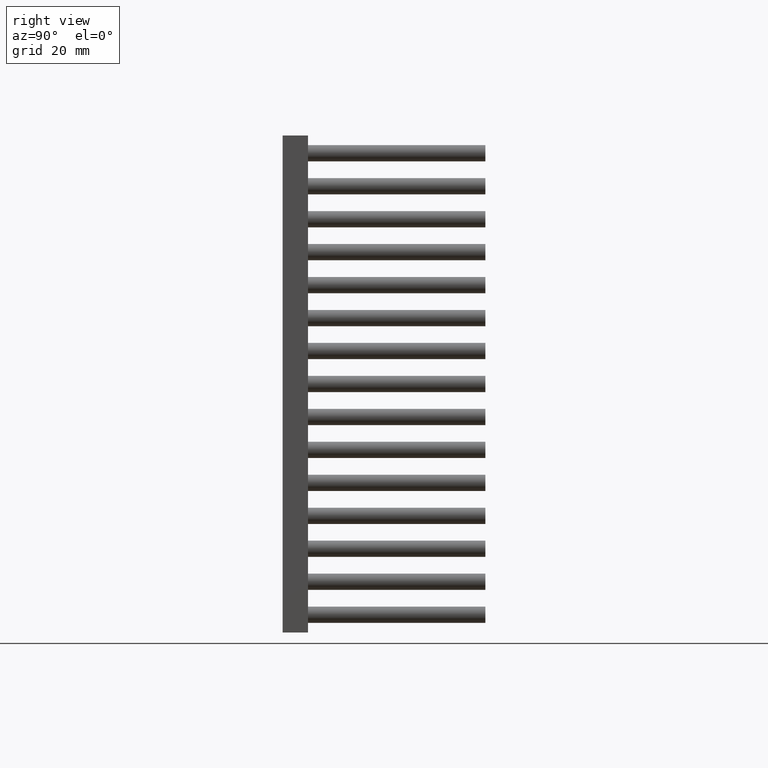
[diagram: clean part render]
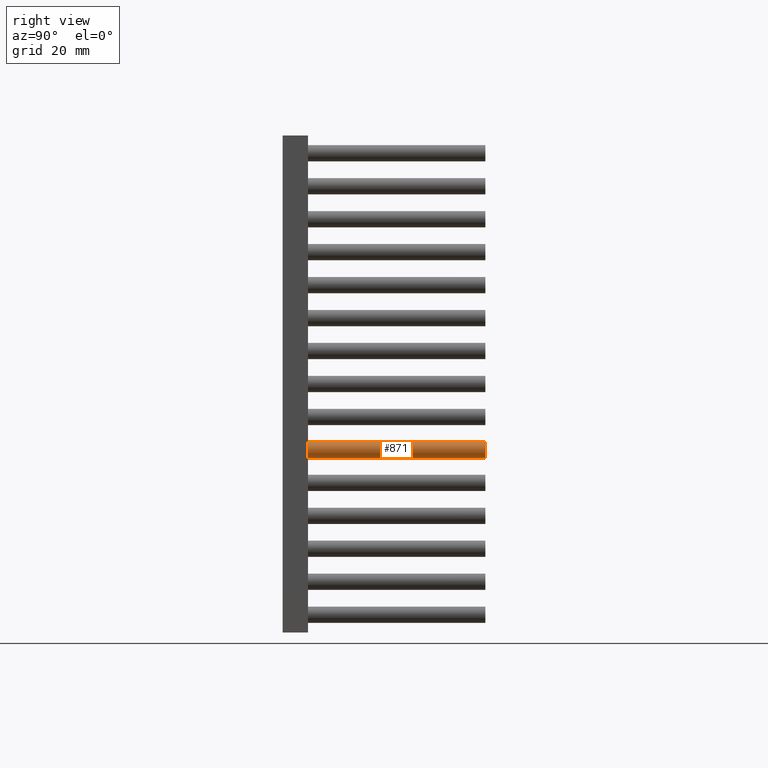
[diagram: same view with one face highlighted and labeled with its STEP entity id]
A machine part, right view. The second image highlights one B-rep face of the part: STEP entity #871.
In plain terms, the highlighted cylindrical surface (edge-blend (fillet) strip) has radius 1.6 mm, axis along (-0, -1, -0).
Its self-contained STEP definition (entity closure, byte-faithful):
#644 = CARTESIAN_POINT ( 'NONE',  ( 94.49999999999998579, 40.00000000000000000, 34.40000000000000568 ) ) ;
#670 = ORIENTED_EDGE ( 'NONE', *, *, #12861, .T. ) ;
#871 = ADVANCED_FACE ( 'NONE', ( #3325 ), #7270, .T. ) ;
#1208 = VERTEX_POINT ( 'NONE', #14127 ) ;
#1703 = DIRECTION ( 'NONE',  ( 0.0000000000000000000, 0.0000000000000000000, 1.000000000000000000 ) ) ;
#2366 = AXIS2_PLACEMENT_3D ( 'NONE', #15761, #10151, #6076 ) ;
#3145 = CARTESIAN_POINT ( 'NONE',  ( 94.49999999999998579, 40.00000000000000000, 36.00000000000000711 ) ) ;
#3165 = ORIENTED_EDGE ( 'NONE', *, *, #4383, .F. ) ;
#3325 = FACE_OUTER_BOUND ( 'NONE', #13777, .T. ) ;
#3453 = CARTESIAN_POINT ( 'NONE',  ( 94.49999999999998579, 5.000000000000000000, 37.60000000000000142 ) ) ;
#3485 = VERTEX_POINT ( 'NONE', #3453 ) ;
#4383 = EDGE_CURVE ( 'NONE', #13012, #1208, #16031, .T. ) ;
#5041 = VERTEX_POINT ( 'NONE', #15782 ) ;
#6076 = DIRECTION ( 'NONE',  ( 0.0000000000000000000, 0.0000000000000000000, 1.000000000000000000 ) ) ;
#7047 = ORIENTED_EDGE ( 'NONE', *, *, #17481, .T. ) ;
#7270 = CYLINDRICAL_SURFACE ( 'NONE', #11613, 1.599999999999997202 ) ;
#7377 = VECTOR ( 'NONE', #10840, 1000.000000000000000 ) ;
#7448 = CARTESIAN_POINT ( 'NONE',  ( 94.49999999999998579, 40.00000000000000000, 34.40000000000000568 ) ) ;
#7578 = VECTOR ( 'NONE', #9656, 1000.000000000000000 ) ;
#8527 = CARTESIAN_POINT ( 'NONE',  ( 94.49999999999998579, 40.00000000000000000, 37.60000000000000142 ) ) ;
#8750 = DIRECTION ( 'NONE',  ( -0.0000000000000000000, -1.000000000000000000, -0.0000000000000000000 ) ) ;
#8801 = AXIS2_PLACEMENT_3D ( 'NONE', #14407, #17341, #1703 ) ;
#9421 = CIRCLE ( 'NONE', #2366, 1.599999999999997202 ) ;
#9656 = DIRECTION ( 'NONE',  ( -0.0000000000000000000, -1.000000000000000000, -0.0000000000000000000 ) ) ;
#10151 = DIRECTION ( 'NONE',  ( 0.0000000000000000000, 1.000000000000000000, 0.0000000000000000000 ) ) ;
#10840 = DIRECTION ( 'NONE',  ( -0.0000000000000000000, -1.000000000000000000, -0.0000000000000000000 ) ) ;
#11121 = LINE ( 'NONE', #8527, #7578 ) ;
#11613 = AXIS2_PLACEMENT_3D ( 'NONE', #3145, #8750, #15681 ) ;
#12861 = EDGE_CURVE ( 'NONE', #3485, #1208, #9421, .T. ) ;
#13012 = VERTEX_POINT ( 'NONE', #644 ) ;
#13775 = EDGE_CURVE ( 'NONE', #5041, #13012, #14712, .T. ) ;
#13777 = EDGE_LOOP ( 'NONE', ( #15556, #7047, #670, #3165 ) ) ;
#14127 = CARTESIAN_POINT ( 'NONE',  ( 94.49999999999998579, 5.000000000000000000, 34.40000000000000568 ) ) ;
#14407 = CARTESIAN_POINT ( 'NONE',  ( 94.49999999999998579, 40.00000000000000000, 36.00000000000000711 ) ) ;
#14712 = CIRCLE ( 'NONE', #8801, 1.599999999999997202 ) ;
#15556 = ORIENTED_EDGE ( 'NONE', *, *, #13775, .F. ) ;
#15681 = DIRECTION ( 'NONE',  ( 0.0000000000000000000, 0.0000000000000000000, -1.000000000000000000 ) ) ;
#15761 = CARTESIAN_POINT ( 'NONE',  ( 94.49999999999998579, 5.000000000000000000, 36.00000000000000711 ) ) ;
#15782 = CARTESIAN_POINT ( 'NONE',  ( 94.49999999999998579, 40.00000000000000000, 37.60000000000000142 ) ) ;
#16031 = LINE ( 'NONE', #7448, #7377 ) ;
#17341 = DIRECTION ( 'NONE',  ( 0.0000000000000000000, 1.000000000000000000, 0.0000000000000000000 ) ) ;
#17481 = EDGE_CURVE ( 'NONE', #5041, #3485, #11121, .T. ) ;